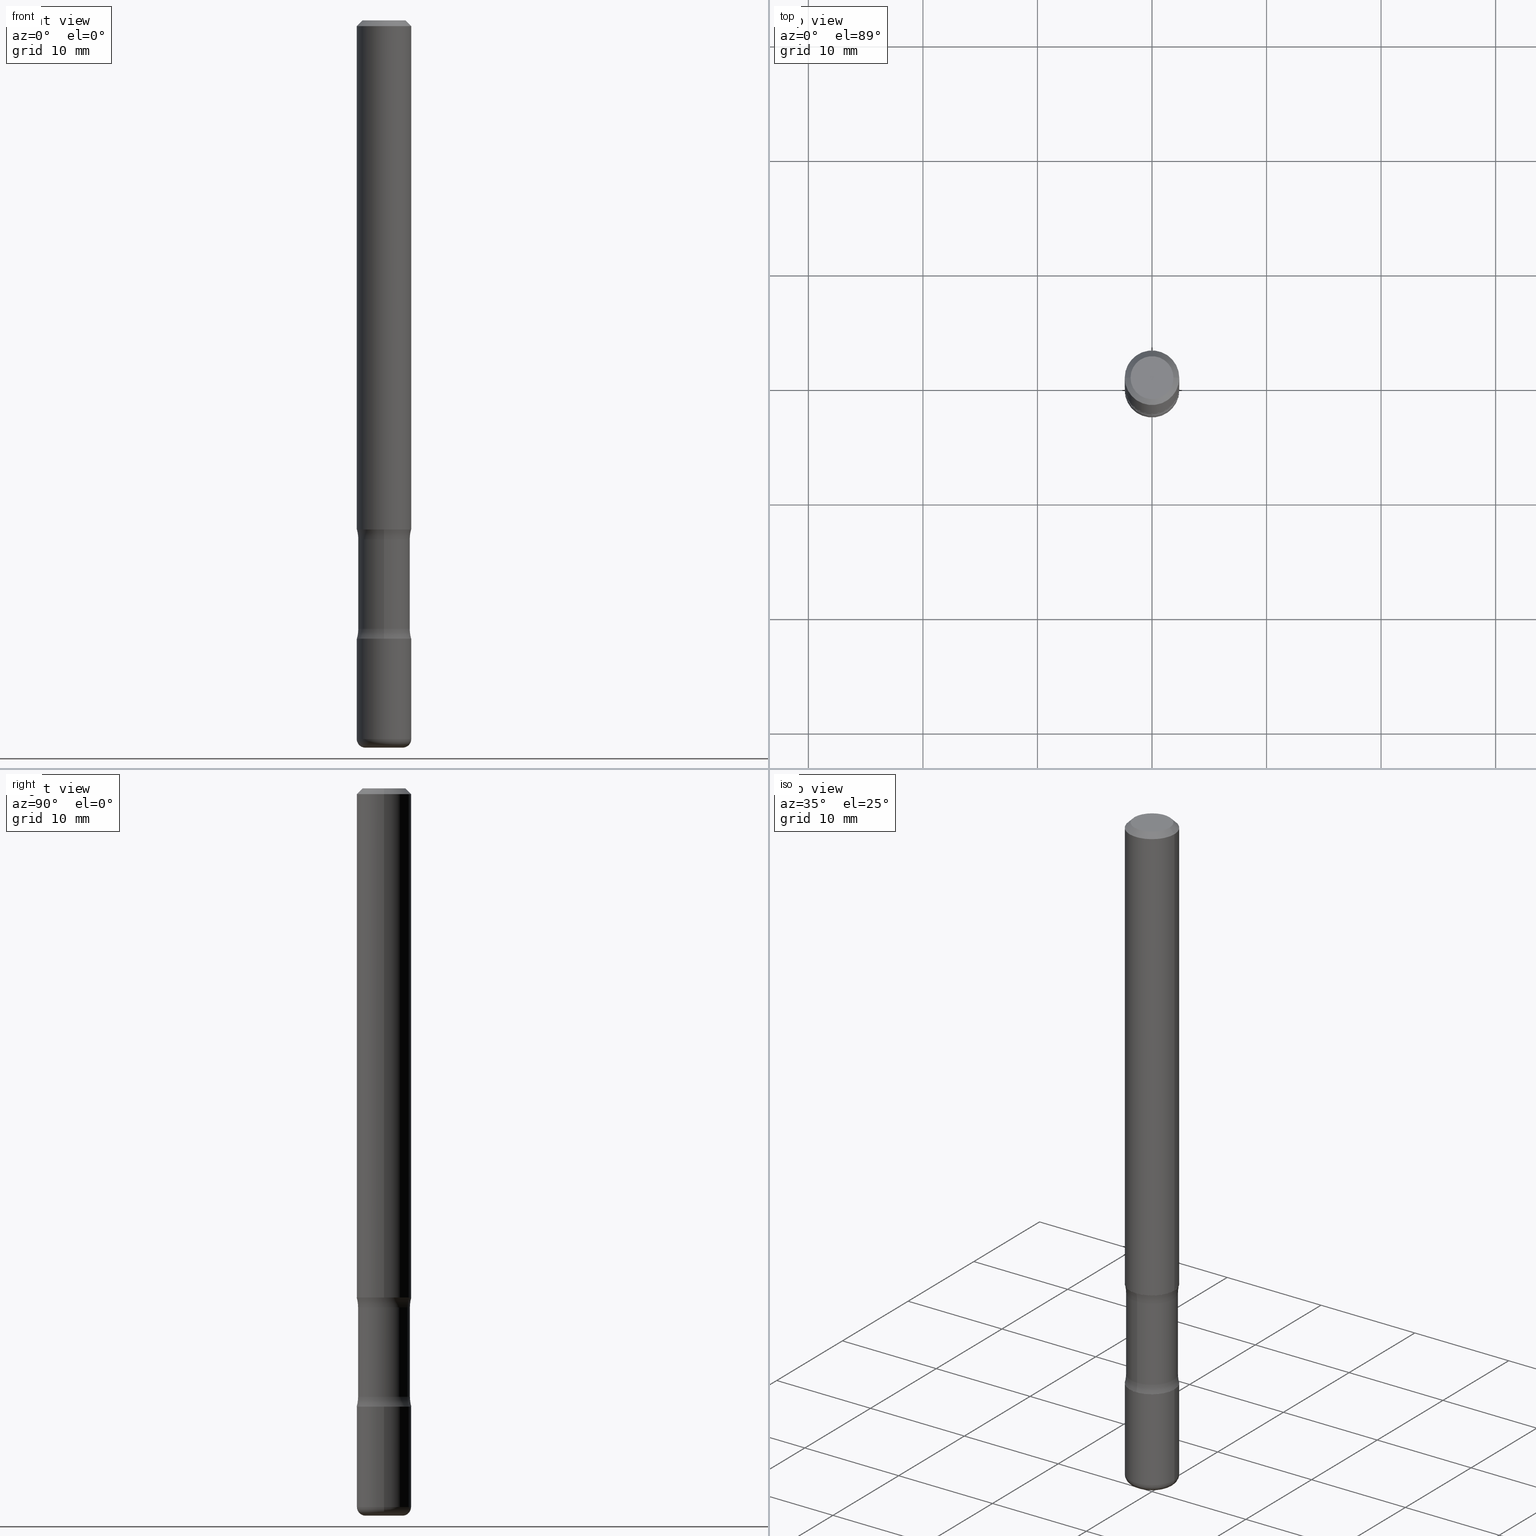
[diagram: canonical four-view strip — front | top / right | iso, engineering-drawing reading convention]
A machine part, canonical four-view strip (front | top / right | iso — engineering-drawing reading convention). The complete STEP part file that produces these views, byte-faithful:
ISO-10303-21;
HEADER;
FILE_DESCRIPTION (( 'STEP AP203' ),
    '1' );
FILE_NAME ('37781.STEP',
    '2024-03-02T00:16:16',
    ( '' ),
    ( '' ),
    'SwSTEP 2.0',
    'SolidWorks 2023',
    '' );
FILE_SCHEMA (( 'CONFIG_CONTROL_DESIGN' ));
ENDSEC;

DATA;
#1 = EDGE_LOOP ( 'NONE', ( #299, #529, #95, #230 ) ) ;
#2 = AXIS2_PLACEMENT_3D ( 'NONE', #373, #100, #353 ) ;
#3 = AXIS2_PLACEMENT_3D ( 'NONE', #190, #428, #503 ) ;
#4 = DIRECTION ( 'NONE',  ( 2.553476385947133355E-29, -3.336808337214295667E-15, -1.000000000000000000 ) ) ;
#5 = FACE_OUTER_BOUND ( 'NONE', #267, .T. ) ;
#6 = ORIENTED_EDGE ( 'NONE', *, *, #74, .F. ) ;
#7 = PERSON_AND_ORGANIZATION_ROLE ( 'creator' ) ;
#8 = ORIENTED_EDGE ( 'NONE', *, *, #205, .F. ) ;
#9 = DIRECTION ( 'NONE',  ( 1.000000000000000000, -6.982962677686268288E-15, 0.000000000000000000 ) ) ;
#10 = APPROVAL ( #269, 'UNSPECIFIED' ) ;
#11 = APPLICATION_PROTOCOL_DEFINITION ( 'international standard', 'config_control_design', 1994, #493 ) ;
#12 = EDGE_LOOP ( 'NONE', ( #543, #16, #545, #512 ) ) ;
#13 = ORIENTED_EDGE ( 'NONE', *, *, #92, .F. ) ;
#14 = DIRECTION ( 'NONE',  ( 1.000000000000000000, -6.860497997771530774E-15, 4.842693077587735886E-29 ) ) ;
#15 = AXIS2_PLACEMENT_3D ( 'NONE', #432, #345, #301 ) ;
#16 = ORIENTED_EDGE ( 'NONE', *, *, #321, .T. ) ;
#17 = LOCAL_TIME ( 19, 16, 16.00000000000000000, #145 ) ;
#18 = DIRECTION ( 'NONE',  ( 1.000000000000000000, -6.982962677686266711E-15, 4.876176775795935793E-29 ) ) ;
#19 = VERTEX_POINT ( 'NONE', #311 ) ;
#20 = CARTESIAN_POINT ( 'NONE',  ( 5.149934974793610063E-16, 0.07374999999999984346, -2.574967487396814399E-16 ) ) ;
#21 = DIRECTION ( 'NONE',  ( 1.000000000000000000, -6.982962677686266711E-15, 4.876176775795935793E-29 ) ) ;
#22 = SECURITY_CLASSIFICATION_LEVEL ( 'unclassified' ) ;
#23 = DIRECTION ( 'NONE',  ( -6.982962677686265922E-15, -1.000000000000000000, 0.000000000000000000 ) ) ;
#24 = CIRCLE ( 'NONE', #263, 0.1250000000000000278 ) ;
#25 = ADVANCED_FACE ( 'NONE', ( #488 ), #408, .T. ) ;
#26 = AXIS2_PLACEMENT_3D ( 'NONE', #143, #457, #138 ) ;
#27 = VERTEX_POINT ( 'NONE', #139 ) ;
#28 = CARTESIAN_POINT ( 'NONE',  ( -0.09375000000000004163, -2.423827170101085722E-15, -1.750000000000000000 ) ) ;
#29 = DIRECTION ( 'NONE',  ( -2.445468806185136597E-29, 3.491481338843145583E-15, 1.000000000000000000 ) ) ;
#30 = DIRECTION ( 'NONE',  ( 6.982962677686265133E-15, 1.000000000000000000, -3.067338098149349877E-15 ) ) ;
#31 = SECURITY_CLASSIFICATION ( '', '', #22 ) ;
#32 = DIRECTION ( 'NONE',  ( -6.982962677686265922E-15, -1.000000000000000000, 3.336808337214295667E-15 ) ) ;
#33 = CARTESIAN_POINT ( 'NONE',  ( 0.09374999999999994449, -9.278611657975658288E-15, -2.470000000000000639 ) ) ;
#34 = EDGE_CURVE ( 'NONE', #146, #196, #236, .T. ) ;
#35 = DIRECTION ( 'NONE',  ( 2.438088387897960049E-29, -3.491481338843145188E-15, -1.000000000000000000 ) ) ;
#36 = CARTESIAN_POINT ( 'NONE',  ( 5.110032292609207884E-29, -7.306245973522905960E-15, -2.091089789977795821 ) ) ;
#37 = ORIENTED_EDGE ( 'NONE', *, *, #308, .T. ) ;
#38 = ADVANCED_FACE ( 'NONE', ( #128 ), #354, .T. ) ;
#39 = APPROVAL_PERSON_ORGANIZATION ( #446, #285, #451 ) ;
#40 = CARTESIAN_POINT ( 'NONE',  ( -6.110131029264649859E-16, -0.08906250000000860700, -2.499999999999999556 ) ) ;
#41 = DIRECTION ( 'NONE',  ( 2.553476385947133355E-29, -3.336808337214295667E-15, -1.000000000000000000 ) ) ;
#42 = CARTESIAN_POINT ( 'NONE',  ( 5.113694852322927974E-29, -7.301000979552905916E-15, -2.091089789977795821 ) ) ;
#43 = TOROIDAL_SURFACE ( 'NONE', #176, 0.06375000000000007050, 0.02999999999999971440 ) ;
#44 = VECTOR ( 'NONE', #559, 39.37007874015748143 ) ;
#45 = DIRECTION ( 'NONE',  ( -2.445468806185136597E-29, 3.491481338843145583E-15, 1.000000000000000000 ) ) ;
#46 = CIRCLE ( 'NONE', #261, 0.07374999999999984346 ) ;
#47 = APPROVAL_ROLE ( '' ) ;
#48 = ORIENTED_EDGE ( 'NONE', *, *, #214, .F. ) ;
#49 = ADVANCED_FACE ( 'NONE', ( #394 ), #251, .F. ) ;
#50 = PERSON_AND_ORGANIZATION ( #173, #389 ) ;
#51 = ORIENTED_EDGE ( 'NONE', *, *, #423, .T. ) ;
#52 = CARTESIAN_POINT ( 'NONE',  ( 0.000000000000000000, 0.000000000000000000, 0.000000000000000000 ) ) ;
#53 = CYLINDRICAL_SURFACE ( 'NONE', #291, 0.09374999999999991673 ) ;
#54 = ORIENTED_EDGE ( 'NONE', *, *, #256, .T. ) ;
#55 = CARTESIAN_POINT ( 'NONE',  ( 0.000000000000000000, 0.000000000000000000, 0.000000000000000000 ) ) ;
#56 = DIRECTION ( 'NONE',  ( 1.000000000000000000, -6.982962677686266711E-15, 4.876176775795935793E-29 ) ) ;
#57 = ADVANCED_BREP_SHAPE_REPRESENTATION ( '37781', ( #153, #535, #341, #549 ), #65 ) ;
#58 = EDGE_LOOP ( 'NONE', ( #13, #107, #111, #365 ) ) ;
#59 = PERSON_AND_ORGANIZATION_ROLE ( 'creator' ) ;
#60 = EDGE_LOOP ( 'NONE', ( #531, #8, #227, #186 ) ) ;
#61 = EDGE_CURVE ( 'NONE', #213, #430, #358, .T. ) ;
#62 = FACE_OUTER_BOUND ( 'NONE', #502, .T. ) ;
#63 = CARTESIAN_POINT ( 'NONE',  ( 6.040307951277289098E-29, -8.623958906942573151E-15, -2.470000000000000639 ) ) ;
#64 = CIRCLE ( 'NONE', #141, 0.1250000000000000278 ) ;
#65 =( GEOMETRIC_REPRESENTATION_CONTEXT ( 3 ) GLOBAL_UNCERTAINTY_ASSIGNED_CONTEXT ( ( #183 ) ) GLOBAL_UNIT_ASSIGNED_CONTEXT ( ( #182, #99, #218 ) ) REPRESENTATION_CONTEXT ( 'NONE', 'WORKASPACE' ) );
#66 = CARTESIAN_POINT ( 'NONE',  ( -0.09375000000000005551, 6.661338147750943187E-16, -4.611501647113976798E-30 ) ) ;
#67 = DIRECTION ( 'NONE',  ( 2.553476385947133355E-29, -3.336808337214295667E-15, -1.000000000000000000 ) ) ;
#68 = ORIENTED_EDGE ( 'NONE', *, *, #336, .F. ) ;
#69 = CARTESIAN_POINT ( 'NONE',  ( 4.890937612370276662E-31, -6.982962677686296539E-17, -0.02000000000000001776 ) ) ;
#70 = CIRCLE ( 'NONE', #88, 0.02999999999999971440 ) ;
#71 = CC_DESIGN_DATE_AND_TIME_ASSIGNMENT ( #224, #232, ( #401 ) ) ;
#72 = DIRECTION ( 'NONE',  ( 1.000000000000000000, -6.982962677686266711E-15, 4.876176775795935793E-29 ) ) ;
#73 = DIRECTION ( 'NONE',  ( 2.445468806185136597E-29, -3.491481338843145583E-15, -1.000000000000000000 ) ) ;
#74 = EDGE_CURVE ( 'NONE', #91, #283, #24, .T. ) ;
#75 = ORIENTED_EDGE ( 'NONE', *, *, #337, .T. ) ;
#76 = PLANE ( 'NONE',  #222 ) ;
#77 = VECTOR ( 'NONE', #383, 39.37007874015748143 ) ;
#78 = AXIS2_PLACEMENT_3D ( 'NONE', #477, #4, #167 ) ;
#79 = DIRECTION ( 'NONE',  ( 2.438088387897960049E-29, -3.491481338843145188E-15, -1.000000000000000000 ) ) ;
#80 = ORIENTED_EDGE ( 'NONE', *, *, #558, .F. ) ;
#81 = CC_DESIGN_PERSON_AND_ORGANIZATION_ASSIGNMENT ( #177, #309, ( #390 ) ) ;
#82 = LINE ( 'NONE', #439, #44 ) ;
#83 = FACE_OUTER_BOUND ( 'NONE', #286, .T. ) ;
#84 = EDGE_LOOP ( 'NONE', ( #528, #539, #51, #233 ) ) ;
#85 = VERTEX_POINT ( 'NONE', #552 ) ;
#86 = CIRCLE ( 'NONE', #304, 0.09375000000000009714 ) ;
#87 = DIRECTION ( 'NONE',  ( 6.860497997771531562E-15, 1.000000000000000000, 0.000000000000000000 ) ) ;
#88 = AXIS2_PLACEMENT_3D ( 'NONE', #279, #367, #313 ) ;
#89 = DATE_AND_TIME ( #275, #455 ) ;
#90 = CARTESIAN_POINT ( 'NONE',  ( -1.468575352647916884E-15, -0.2140625000000072886, -2.091089789977794933 ) ) ;
#91 = VERTEX_POINT ( 'NONE', #157 ) ;
#92 = EDGE_CURVE ( 'NONE', #146, #518, #144, .T. ) ;
#93 = CARTESIAN_POINT ( 'NONE',  ( 6.040307951277289098E-29, -8.623958906942573151E-15, -2.470000000000000639 ) ) ;
#94 = DIRECTION ( 'NONE',  ( 1.000000000000000000, 0.000000000000000000, 0.000000000000000000 ) ) ;
#95 = ORIENTED_EDGE ( 'NONE', *, *, #294, .F. ) ;
#96 = LINE ( 'NONE', #490, #470 ) ;
#97 = CIRCLE ( 'NONE', #501, 0.1250000000000000278 ) ;
#98 = CARTESIAN_POINT ( 'NONE',  ( 0.06375000000000007050, -9.173867217810364919E-15, -2.500000000000000000 ) ) ;
#99 =( NAMED_UNIT ( * ) PLANE_ANGLE_UNIT ( ) SI_UNIT ( $, .RADIAN. ) );
#100 = DIRECTION ( 'NONE',  ( 2.445468806185136597E-29, -3.491481338843145583E-15, -1.000000000000000000 ) ) ;
#101 = CARTESIAN_POINT ( 'NONE',  ( 0.000000000000000000, 0.000000000000000000, 0.000000000000000000 ) ) ;
#102 = ORIENTED_EDGE ( 'NONE', *, *, #148, .T. ) ;
#103 = DIRECTION ( 'NONE',  ( -2.445468806185136597E-29, 3.491481338843145583E-15, 1.000000000000000000 ) ) ;
#104 = AXIS2_PLACEMENT_3D ( 'NONE', #20, #220, #409 ) ;
#105 = AXIS2_PLACEMENT_3D ( 'NONE', #475, #388, #516 ) ;
#106 = LINE ( 'NONE', #287, #77 ) ;
#107 = ORIENTED_EDGE ( 'NONE', *, *, #34, .T. ) ;
#108 = PLANE ( 'NONE',  #130 ) ;
#109 = EDGE_LOOP ( 'NONE', ( #340, #244, #449, #374 ) ) ;
#110 = CARTESIAN_POINT ( 'NONE',  ( -0.09374999999999981959, 5.848231242562233185E-16, -0.02000000000000001776 ) ) ;
#111 = ORIENTED_EDGE ( 'NONE', *, *, #120, .T. ) ;
#112 = CIRCLE ( 'NONE', #443, 0.09375000000000004163 ) ;
#113 = AXIS2_PLACEMENT_3D ( 'NONE', #212, #339, #434 ) ;
#114 = ADVANCED_FACE ( 'NONE', ( #491 ), #43, .T. ) ;
#115 = CARTESIAN_POINT ( 'NONE',  ( 6.219201134814940684E-16, 0.08906249999999125977, -2.500000000000000444 ) ) ;
#116 = EDGE_LOOP ( 'NONE', ( #334, #510 ) ) ;
#117 = DIRECTION ( 'NONE',  ( 7.105427357601001859E-15, 1.000000000000000000, -3.491481338843145583E-15 ) ) ;
#118 = PLANE ( 'NONE',  #105 ) ;
#119 = ORIENTED_EDGE ( 'NONE', *, *, #294, .T. ) ;
#120 = EDGE_CURVE ( 'NONE', #196, #368, #70, .T. ) ;
#121 = DIRECTION ( 'NONE',  ( -1.000000000000000000, 7.105427357600993970E-15, 0.000000000000000000 ) ) ;
#122 = CIRCLE ( 'NONE', #357, 0.06375000000000007050 ) ;
#123 = DIRECTION ( 'NONE',  ( 1.000000000000000000, -6.860497997771530774E-15, 4.842693077587735886E-29 ) ) ;
#124 = CARTESIAN_POINT ( 'NONE',  ( -0.09374999999999994449, -7.957825092167479227E-15, -2.470000000000000639 ) ) ;
#125 =( LENGTH_UNIT ( ) NAMED_UNIT ( * ) SI_UNIT ( $, .METRE. ) );
#126 = ORIENTED_EDGE ( 'NONE', *, *, #61, .T. ) ;
#127 = ORIENTED_EDGE ( 'NONE', *, *, #517, .T. ) ;
#128 = FACE_OUTER_BOUND ( 'NONE', #155, .T. ) ;
#129 = CIRCLE ( 'NONE', #468, 0.09375000000000002776 ) ;
#130 = AXIS2_PLACEMENT_3D ( 'NONE', #193, #427, #32 ) ;
#131 = EDGE_CURVE ( 'NONE', #85, #163, #161, .T. ) ;
#132 = DATE_TIME_ROLE ( 'classification_date' ) ;
#133 = EDGE_LOOP ( 'NONE', ( #171, #404, #174, #393 ) ) ;
#134 = CARTESIAN_POINT ( 'NONE',  ( 6.546527510331302998E-16, 0.09374999999999390765, -1.750000000000000222 ) ) ;
#135 = ORIENTED_EDGE ( 'NONE', *, *, #437, .F. ) ;
#136 = ORIENTED_EDGE ( 'NONE', *, *, #472, .F. ) ;
#137 = ORIENTED_EDGE ( 'NONE', *, *, #317, .F. ) ;
#138 = DIRECTION ( 'NONE',  ( 6.982962677686265133E-15, 1.000000000000000000, -6.134676196298701332E-15 ) ) ;
#139 = CARTESIAN_POINT ( 'NONE',  ( 0.09375000000000002776, -8.074050596074771916E-15, -2.125000000000000000 ) ) ;
#140 = DIRECTION ( 'NONE',  ( -2.445468806185136597E-29, 3.491481338843145583E-15, 1.000000000000000000 ) ) ;
#141 = AXIS2_PLACEMENT_3D ( 'NONE', #366, #234, #23 ) ;
#142 = MECHANICAL_CONTEXT ( 'NONE', #493, 'mechanical' ) ;
#143 = CARTESIAN_POINT ( 'NONE',  ( 6.154174857873591467E-29, -8.670700971497045879E-15, -2.500000000000000000 ) ) ;
#144 = CIRCLE ( 'NONE', #554, 0.02999999999999971440 ) ;
#145 = COORDINATED_UNIVERSAL_TIME_OFFSET ( 5, 0, .BEHIND. ) ;
#146 = VERTEX_POINT ( 'NONE', #147 ) ;
#147 = CARTESIAN_POINT ( 'NONE',  ( -0.06375000000000007050, -8.116778722614140245E-15, -2.500000000000000000 ) ) ;
#148 = EDGE_CURVE ( 'NONE', #518, #368, #303, .T. ) ;
#149 = DIRECTION ( 'NONE',  ( -1.000000000000000000, 6.982962677686267499E-15, 0.000000000000000000 ) ) ;
#150 = ADVANCED_FACE ( 'NONE', ( #536 ), #315, .T. ) ;
#151 = CARTESIAN_POINT ( 'NONE',  ( -6.270923951087521301E-16, -0.08906250000000723310, -2.091089789977795377 ) ) ;
#152 = APPROVAL_PERSON_ORGANIZATION ( #497, #411, #305 ) ;
#153 = MANIFOLD_SOLID_BREP ( 'Body-Move/Copy2[1]', #508 ) ;
#154 = DIRECTION ( 'NONE',  ( 2.553476385947133355E-29, -3.336808337214295667E-15, -1.000000000000000000 ) ) ;
#155 = EDGE_LOOP ( 'NONE', ( #225, #323 ) ) ;
#156 = CARTESIAN_POINT ( 'NONE',  ( 4.890937612370276662E-31, -6.982962677686296539E-17, -0.02000000000000001776 ) ) ;
#157 = CARTESIAN_POINT ( 'NONE',  ( -6.431716872910290192E-16, -0.09375000000000745237, -2.125000000000000000 ) ) ;
#158 = DIRECTION ( 'NONE',  ( 6.982962677686265922E-15, 1.000000000000000000, -2.913971193241879977E-15 ) ) ;
#159 = AXIS2_PLACEMENT_3D ( 'NONE', #215, #519, #9 ) ;
#160 = CIRCLE ( 'NONE', #272, 0.09375000000000002776 ) ;
#161 = CIRCLE ( 'NONE', #335, 0.09375000000000009714 ) ;
#162 = DIRECTION ( 'NONE',  ( 2.553476385947133355E-29, -3.336808337214295667E-15, -1.000000000000000000 ) ) ;
#163 = VERTEX_POINT ( 'NONE', #134 ) ;
#164 = CARTESIAN_POINT ( 'NONE',  ( 4.338651280918389502E-29, -6.262637308385086581E-15, -1.783910210022204401 ) ) ;
#165 = FACE_OUTER_BOUND ( 'NONE', #312, .T. ) ;
#166 = CIRCLE ( 'NONE', #344, 0.08906249999999993339 ) ;
#167 = DIRECTION ( 'NONE',  ( 6.982962677686265922E-15, 1.000000000000000000, -3.336808337214296061E-15 ) ) ;
#168 = FACE_OUTER_BOUND ( 'NONE', #523, .T. ) ;
#169 = EDGE_CURVE ( 'NONE', #440, #430, #96, .T. ) ;
#170 = APPROVAL_STATUS ( 'not_yet_approved' ) ;
#171 = ORIENTED_EDGE ( 'NONE', *, *, #214, .T. ) ;
#172 = DIRECTION ( 'NONE',  ( 6.860497997771531562E-15, 1.000000000000000000, 0.000000000000000000 ) ) ;
#173 = PERSON ( 'UNSPECIFIED', 'UNSPECIFIED', 'UNSPECIFIED', ('UNSPECIFIED'), ('UNSPECIFIED'), ('UNSPECIFIED') ) ;
#174 = ORIENTED_EDGE ( 'NONE', *, *, #517, .F. ) ;
#175 = DIRECTION ( 'NONE',  ( 1.000000000000000000, -6.982962677686266711E-15, 4.876176775795935793E-29 ) ) ;
#176 = AXIS2_PLACEMENT_3D ( 'NONE', #63, #140, #184 ) ;
#177 = PERSON_AND_ORGANIZATION ( #173, #389 ) ;
#178 = ORIENTED_EDGE ( 'NONE', *, *, #169, .F. ) ;
#179 = DIRECTION ( 'NONE',  ( 6.982962677686265133E-15, 1.000000000000000000, -3.067338098149349877E-15 ) ) ;
#180 = APPROVAL_DATE_TIME ( #228, #10 ) ;
#181 = DIRECTION ( 'NONE',  ( -2.445468806185136597E-29, 3.491481338843145583E-15, 1.000000000000000000 ) ) ;
#182 =( CONVERSION_BASED_UNIT ( 'INCH', #360 ) LENGTH_UNIT ( ) NAMED_UNIT ( #217 ) );
#183 = UNCERTAINTY_MEASURE_WITH_UNIT (LENGTH_MEASURE( 1.000000000000000082E-05 ), #182, 'distance_accuracy_value', 'NONE');
#184 = DIRECTION ( 'NONE',  ( 1.000000000000000000, -6.982962677686268288E-15, 4.883557194083112901E-29 ) ) ;
#185 = PERSON_AND_ORGANIZATION ( #173, #389 ) ;
#186 = ORIENTED_EDGE ( 'NONE', *, *, #557, .T. ) ;
#187 = LOCAL_TIME ( 19, 16, 16.00000000000000000, #410 ) ;
#188 = PLANE ( 'NONE',  #104 ) ;
#189 = SHAPE_DEFINITION_REPRESENTATION ( #378, #57 ) ;
#190 = CARTESIAN_POINT ( 'NONE',  ( 6.154174857873591467E-29, -8.670700971497045879E-15, -2.500000000000000000 ) ) ;
#191 = ADVANCED_FACE ( 'NONE', ( #271 ), #53, .T. ) ;
#192 = ORIENTED_EDGE ( 'NONE', *, *, #478, .T. ) ;
#193 = CARTESIAN_POINT ( 'NONE',  ( 8.726388948129611336E-30, -1.361158663068067946E-14, -2.125000000000000000 ) ) ;
#194 = DIRECTION ( 'NONE',  ( -2.445468806185136597E-29, 3.491481338843145583E-15, 1.000000000000000000 ) ) ;
#195 = CC_DESIGN_APPROVAL ( #285, ( #507 ) ) ;
#196 = VERTEX_POINT ( 'NONE', #98 ) ;
#197 = DIRECTION ( 'NONE',  ( -2.445468806185136597E-29, 3.491481338843145583E-15, 1.000000000000000000 ) ) ;
#198 = APPROVAL_DATE_TIME ( #448, #411 ) ;
#199 = CARTESIAN_POINT ( 'NONE',  ( 5.196621213143415268E-29, -7.419397845041685201E-15, -2.125000000000000000 ) ) ;
#200 = DIRECTION ( 'NONE',  ( 6.982962677686265922E-15, 1.000000000000000000, -3.336808337214296061E-15 ) ) ;
#201 = ORIENTED_EDGE ( 'NONE', *, *, #478, .F. ) ;
#202 = CIRCLE ( 'NONE', #524, 0.09374999999999981959 ) ;
#203 = LOCAL_TIME ( 19, 16, 16.00000000000000000, #264 ) ;
#204 = CARTESIAN_POINT ( 'NONE',  ( 0.09375000000000004163, -6.764745094008592175E-15, -1.750000000000000000 ) ) ;
#205 = EDGE_CURVE ( 'NONE', #466, #213, #46, .T. ) ;
#206 = DIRECTION ( 'NONE',  ( 1.000000000000000000, -6.982962677686269866E-15, 0.000000000000000000 ) ) ;
#207 = DIRECTION ( 'NONE',  ( 6.982962677686265133E-15, 1.000000000000000000, -3.067338098149350666E-15 ) ) ;
#208 = ORIENTED_EDGE ( 'NONE', *, *, #429, .F. ) ;
#209 = CC_DESIGN_PERSON_AND_ORGANIZATION_ASSIGNMENT ( #319, #7, ( #401 ) ) ;
#210 = AXIS2_PLACEMENT_3D ( 'NONE', #242, #197, #246 ) ;
#211 = APPROVAL_PERSON_ORGANIZATION ( #273, #10, #47 ) ;
#212 = CARTESIAN_POINT ( 'NONE',  ( 5.196621213143415268E-29, -7.419397845041685201E-15, -2.125000000000000000 ) ) ;
#213 = VERTEX_POINT ( 'NONE', #542 ) ;
#214 = EDGE_CURVE ( 'NONE', #480, #19, #506, .T. ) ;
#215 = CARTESIAN_POINT ( 'NONE',  ( 6.113672015462842613E-29, -8.728703347107864943E-15, -2.500000000000000000 ) ) ;
#216 = CALENDAR_DATE ( 2024, 1, 3 ) ;
#217 = DIMENSIONAL_EXPONENTS ( 1.000000000000000000, 0.000000000000000000, 0.000000000000000000, 0.000000000000000000, 0.000000000000000000, 0.000000000000000000, 0.000000000000000000 ) ;
#218 =( NAMED_UNIT ( * ) SI_UNIT ( $, .STERADIAN. ) SOLID_ANGLE_UNIT ( ) );
#219 = ORIENTED_EDGE ( 'NONE', *, *, #337, .F. ) ;
#220 = DIRECTION ( 'NONE',  ( 2.438088387897960049E-29, -3.491481338843145188E-15, -1.000000000000000000 ) ) ;
#221 = ADVANCED_FACE ( 'NONE', ( #495 ), #238, .T. ) ;
#222 = AXIS2_PLACEMENT_3D ( 'NONE', #298, #79, #258 ) ;
#223 = CIRCLE ( 'NONE', #247, 0.09374999999999981959 ) ;
#224 = DATE_AND_TIME ( #494, #187 ) ;
#225 = ORIENTED_EDGE ( 'NONE', *, *, #419, .F. ) ;
#226 = CARTESIAN_POINT ( 'NONE',  ( 4.239067568413239630E-29, -6.168094718586322946E-15, -1.750000000000000000 ) ) ;
#227 = ORIENTED_EDGE ( 'NONE', *, *, #265, .T. ) ;
#228 = DATE_AND_TIME ( #522, #203 ) ;
#229 = DIRECTION ( 'NONE',  ( 2.553476385947133355E-29, -3.336808337214295667E-15, -1.000000000000000000 ) ) ;
#230 = ORIENTED_EDGE ( 'NONE', *, *, #120, .F. ) ;
#231 = CARTESIAN_POINT ( 'NONE',  ( -0.06375000000000007050, -8.170987912895507894E-15, -2.470000000000000639 ) ) ;
#232 = DATE_TIME_ROLE ( 'creation_date' ) ;
#233 = ORIENTED_EDGE ( 'NONE', *, *, #499, .F. ) ;
#234 = DIRECTION ( 'NONE',  ( -1.000000000000000000, 6.982962677686265922E-15, -4.883557194083112901E-29 ) ) ;
#235 = ORIENTED_EDGE ( 'NONE', *, *, #278, .T. ) ;
#236 = CIRCLE ( 'NONE', #159, 0.06375000000000007050 ) ;
#237 = AXIS2_PLACEMENT_3D ( 'NONE', #343, #123, #87 ) ;
#238 = CYLINDRICAL_SURFACE ( 'NONE', #26, 0.08906249999999993339 ) ;
#239 = ORIENTED_EDGE ( 'NONE', *, *, #321, .F. ) ;
#240 = ADVANCED_FACE ( 'NONE', ( #62 ), #188, .F. ) ;
#241 = DIRECTION ( 'NONE',  ( -2.445468806185136597E-29, 3.491481338843145583E-15, 1.000000000000000000 ) ) ;
#242 = CARTESIAN_POINT ( 'NONE',  ( 6.040307951277289098E-29, -8.623958906942573151E-15, -2.470000000000000639 ) ) ;
#243 = ADVANCED_FACE ( 'NONE', ( #486 ), #418, .T. ) ;
#244 = ORIENTED_EDGE ( 'NONE', *, *, #74, .T. ) ;
#245 = CONICAL_SURFACE ( 'NONE', #2, 0.09374999999999981959, 0.7853981633974472798 ) ;
#246 = DIRECTION ( 'NONE',  ( 1.000000000000000000, -6.982962677686265922E-15, 0.000000000000000000 ) ) ;
#247 = AXIS2_PLACEMENT_3D ( 'NONE', #302, #474, #348 ) ;
#248 = DIRECTION ( 'NONE',  ( 1.000000000000000000, -6.982962677686268288E-15, 0.000000000000000000 ) ) ;
#249 = ADVANCED_FACE ( 'NONE', ( #405 ), #245, .T. ) ;
#250 = FACE_OUTER_BOUND ( 'NONE', #392, .T. ) ;
#251 = PLANE ( 'NONE',  #15 ) ;
#252 = CARTESIAN_POINT ( 'NONE',  ( 6.219201134814759246E-16, 0.08906249999999366063, -1.783910210022204845 ) ) ;
#253 = ADVANCED_FACE ( 'NONE', ( #526 ), #316, .T. ) ;
#254 = VECTOR ( 'NONE', #403, 39.37007874015748143 ) ;
#255 = AXIS2_PLACEMENT_3D ( 'NONE', #42, #560, #293 ) ;
#256 = EDGE_CURVE ( 'NONE', #406, #400, #64, .T. ) ;
#257 = CARTESIAN_POINT ( 'NONE',  ( 0.09374999999999981959, -7.130013140679428044E-16, -0.02000000000000001776 ) ) ;
#258 = DIRECTION ( 'NONE',  ( -1.000000000000000000, 6.982962677686265922E-15, -4.876176775795935793E-29 ) ) ;
#259 = DIRECTION ( 'NONE',  ( 6.982962677686265922E-15, 1.000000000000000000, -2.913971193241877611E-15 ) ) ;
#260 = VERTEX_POINT ( 'NONE', #28 ) ;
#261 = AXIS2_PLACEMENT_3D ( 'NONE', #52, #274, #56 ) ;
#262 = CONICAL_SURFACE ( 'NONE', #290, 0.09374999999999981959, 0.7853981633974472798 ) ;
#263 = AXIS2_PLACEMENT_3D ( 'NONE', #90, #14, #172 ) ;
#264 = COORDINATED_UNIVERSAL_TIME_OFFSET ( 5, 0, .BEHIND. ) ;
#265 = EDGE_CURVE ( 'NONE', #466, #352, #106, .T. ) ;
#266 = CALENDAR_DATE ( 2024, 1, 3 ) ;
#267 = EDGE_LOOP ( 'NONE', ( #525, #239 ) ) ;
#268 = DIRECTION ( 'NONE',  ( -2.445468806185136597E-29, 3.491481338843145583E-15, 1.000000000000000000 ) ) ;
#269 = APPROVAL_STATUS ( 'not_yet_approved' ) ;
#270 = VERTEX_POINT ( 'NONE', #282 ) ;
#271 = FACE_OUTER_BOUND ( 'NONE', #12, .T. ) ;
#272 = AXIS2_PLACEMENT_3D ( 'NONE', #199, #67, #158 ) ;
#273 = PERSON_AND_ORGANIZATION ( #173, #389 ) ;
#274 = DIRECTION ( 'NONE',  ( -2.445468806185136597E-29, 3.491481338843145583E-15, 1.000000000000000000 ) ) ;
#275 = CALENDAR_DATE ( 2024, 1, 3 ) ;
#276 = ORIENTED_EDGE ( 'NONE', *, *, #437, .T. ) ;
#277 = APPLICATION_CONTEXT ( 'configuration controlled 3d designs of mechanical parts and assemblies' ) ;
#278 = EDGE_CURVE ( 'NONE', #270, #27, #129, .T. ) ;
#279 = CARTESIAN_POINT ( 'NONE',  ( 0.06375000000000007050, -9.069122777645073127E-15, -2.470000000000000639 ) ) ;
#280 = ORIENTED_EDGE ( 'NONE', *, *, #336, .T. ) ;
#281 = CIRCLE ( 'NONE', #327, 0.09375000000000002776 ) ;
#282 = CARTESIAN_POINT ( 'NONE',  ( -0.09375000000000002776, -7.355544561217034463E-15, -2.125000000000000000 ) ) ;
#283 = VERTEX_POINT ( 'NONE', #151 ) ;
#284 = DIRECTION ( 'NONE',  ( -2.445468806185136877E-29, 3.491481338843145188E-15, 1.000000000000000000 ) ) ;
#285 = APPROVAL ( #314, 'UNSPECIFIED' ) ;
#286 = EDGE_LOOP ( 'NONE', ( #80, #48, #75, #276 ) ) ;
#287 = CARTESIAN_POINT ( 'NONE',  ( -0.09374999999999981959, 5.848231242562233185E-16, -0.02000000000000001776 ) ) ;
#288 = CIRCLE ( 'NONE', #369, 0.08906249999999994726 ) ;
#289 = CARTESIAN_POINT ( 'NONE',  ( 5.113694852322927974E-29, -7.301000979552905916E-15, -2.091089789977795821 ) ) ;
#290 = AXIS2_PLACEMENT_3D ( 'NONE', #69, #73, #149 ) ;
#291 = AXIS2_PLACEMENT_3D ( 'NONE', #101, #460, #18 ) ;
#292 = DIRECTION ( 'NONE',  ( 2.553476385947133355E-29, -3.336808337214295667E-15, -1.000000000000000000 ) ) ;
#293 = DIRECTION ( 'NONE',  ( 6.982962677686265922E-15, 1.000000000000000000, -3.336808337214296061E-15 ) ) ;
#294 = EDGE_CURVE ( 'NONE', #368, #518, #461, .T. ) ;
#295 = DIRECTION ( 'NONE',  ( 2.553476385947133355E-29, -3.336808337214295667E-15, -1.000000000000000000 ) ) ;
#296 = AXIS2_PLACEMENT_3D ( 'NONE', #164, #295, #200 ) ;
#297 = CC_DESIGN_SECURITY_CLASSIFICATION ( #31, ( #507 ) ) ;
#298 = CARTESIAN_POINT ( 'NONE',  ( 8.726388948129611336E-30, -1.361158663068067946E-14, -2.125000000000000000 ) ) ;
#299 = ORIENTED_EDGE ( 'NONE', *, *, #419, .T. ) ;
#300 = DIRECTION ( 'NONE',  ( -2.445468806185136597E-29, 3.491481338843145583E-15, 1.000000000000000000 ) ) ;
#301 = DIRECTION ( 'NONE',  ( 6.982962677686265922E-15, 1.000000000000000000, -3.336808337214295667E-15 ) ) ;
#302 = CARTESIAN_POINT ( 'NONE',  ( 4.890937612370276662E-31, -6.982962677686296539E-17, -0.02000000000000001776 ) ) ;
#303 = CIRCLE ( 'NONE', #355, 0.09375000000000009714 ) ;
#304 = AXIS2_PLACEMENT_3D ( 'NONE', #338, #431, #259 ) ;
#305 = APPROVAL_ROLE ( '' ) ;
#306 = ORIENTED_EDGE ( 'NONE', *, *, #131, .F. ) ;
#307 = EDGE_LOOP ( 'NONE', ( #119, #396, #201, #136 ) ) ;
#308 = EDGE_CURVE ( 'NONE', #260, #352, #422, .T. ) ;
#309 = PERSON_AND_ORGANIZATION_ROLE ( 'design_owner' ) ;
#310 = ORIENTED_EDGE ( 'NONE', *, *, #205, .T. ) ;
#311 = CARTESIAN_POINT ( 'NONE',  ( -6.270923951087611034E-16, -0.08906250000000623390, -1.783910210022204401 ) ) ;
#312 = EDGE_LOOP ( 'NONE', ( #137, #485, #351, #219 ) ) ;
#313 = DIRECTION ( 'NONE',  ( 1.000000000000000000, -6.982962677686269866E-15, 0.000000000000000000 ) ) ;
#314 = APPROVAL_STATUS ( 'not_yet_approved' ) ;
#315 = CYLINDRICAL_SURFACE ( 'NONE', #433, 0.09375000000000005551 ) ;
#316 = TOROIDAL_SURFACE ( 'NONE', #397, 0.06375000000000007050, 0.02999999999999971440 ) ;
#317 = EDGE_CURVE ( 'NONE', #19, #480, #288, .T. ) ;
#318 = AXIS2_PLACEMENT_3D ( 'NONE', #471, #29, #72 ) ;
#319 = PERSON_AND_ORGANIZATION ( #173, #389 ) ;
#320 = DIRECTION ( 'NONE',  ( 6.982962677686265922E-15, 1.000000000000000000, -2.913971193241877611E-15 ) ) ;
#321 = EDGE_CURVE ( 'NONE', #260, #440, #112, .T. ) ;
#322 = DATE_AND_TIME ( #216, #17 ) ;
#323 = ORIENTED_EDGE ( 'NONE', *, *, #34, .F. ) ;
#324 = DIRECTION ( 'NONE',  ( -2.445468806185136597E-29, 3.491481338843145583E-15, 1.000000000000000000 ) ) ;
#325 = ORIENTED_EDGE ( 'NONE', *, *, #472, .T. ) ;
#326 = CARTESIAN_POINT ( 'NONE',  ( 6.219201134814836160E-16, 0.08906249999999261979, -2.091089789977795821 ) ) ;
#327 = AXIS2_PLACEMENT_3D ( 'NONE', #442, #45, #346 ) ;
#328 = FACE_OUTER_BOUND ( 'NONE', #84, .T. ) ;
#329 = DIRECTION ( 'NONE',  ( 6.982962677686265922E-15, 1.000000000000000000, -3.336808337214296061E-15 ) ) ;
#330 = ORIENTED_EDGE ( 'NONE', *, *, #278, .F. ) ;
#331 = CARTESIAN_POINT ( 'NONE',  ( 4.279570410823988484E-29, -6.110092342975504671E-15, -1.750000000000000000 ) ) ;
#332 = DIRECTION ( 'NONE',  ( 1.000000000000000000, -6.982962677686270655E-15, 0.000000000000000000 ) ) ;
#333 = TOROIDAL_SURFACE ( 'NONE', #514, 0.2140624999999999889, 0.1250000000000000278 ) ;
#334 = ORIENTED_EDGE ( 'NONE', *, *, #420, .T. ) ;
#335 = AXIS2_PLACEMENT_3D ( 'NONE', #226, #229, #320 ) ;
#336 = EDGE_CURVE ( 'NONE', #430, #352, #202, .T. ) ;
#337 = EDGE_CURVE ( 'NONE', #480, #163, #97, .T. ) ;
#338 = CARTESIAN_POINT ( 'NONE',  ( 4.239067568413239630E-29, -6.168094718586322946E-15, -1.750000000000000000 ) ) ;
#339 = DIRECTION ( 'NONE',  ( 2.553476385947133355E-29, -3.336808337214295667E-15, -1.000000000000000000 ) ) ;
#340 = ORIENTED_EDGE ( 'NONE', *, *, #496, .F. ) ;
#341 = MANIFOLD_SOLID_BREP ( 'Body-Move/Copy2[4]', #387 ) ;
#342 = CARTESIAN_POINT ( 'NONE',  ( 6.113672015462842613E-29, -8.728703347107864943E-15, -2.500000000000000000 ) ) ;
#343 = CARTESIAN_POINT ( 'NONE',  ( -1.468575352647924772E-15, -0.2140625000000062339, -1.783910210022203513 ) ) ;
#344 = AXIS2_PLACEMENT_3D ( 'NONE', #511, #41, #513 ) ;
#345 = DIRECTION ( 'NONE',  ( 2.553476385947132794E-29, -3.336808337214295667E-15, -1.000000000000000000 ) ) ;
#346 = DIRECTION ( 'NONE',  ( 1.000000000000000000, -6.982962677686270655E-15, 0.000000000000000000 ) ) ;
#347 = CARTESIAN_POINT ( 'NONE',  ( 0.000000000000000000, 0.000000000000000000, 0.000000000000000000 ) ) ;
#348 = DIRECTION ( 'NONE',  ( 1.000000000000000000, -6.982962677686267499E-15, 0.000000000000000000 ) ) ;
#349 = EDGE_LOOP ( 'NONE', ( #362, #37, #68, #178 ) ) ;
#350 = ORIENTED_EDGE ( 'NONE', *, *, #375, .F. ) ;
#351 = ORIENTED_EDGE ( 'NONE', *, *, #131, .T. ) ;
#352 = VERTEX_POINT ( 'NONE', #110 ) ;
#353 = DIRECTION ( 'NONE',  ( -1.000000000000000000, 6.982962677686267499E-15, 0.000000000000000000 ) ) ;
#354 = PLANE ( 'NONE',  #417 ) ;
#355 = AXIS2_PLACEMENT_3D ( 'NONE', #414, #324, #450 ) ;
#356 = ADVANCED_FACE ( 'NONE', ( #550 ), #333, .F. ) ;
#357 = AXIS2_PLACEMENT_3D ( 'NONE', #547, #103, #248 ) ;
#358 = LINE ( 'NONE', #363, #254 ) ;
#359 = ADVANCED_FACE ( 'NONE', ( #328 ), #500, .T. ) ;
#360 = LENGTH_MEASURE_WITH_UNIT ( LENGTH_MEASURE( 0.02539999999999999897 ), #125 );
#361 = DIRECTION ( 'NONE',  ( -2.445468806185136877E-29, 3.491481338843145188E-15, 1.000000000000000000 ) ) ;
#362 = ORIENTED_EDGE ( 'NONE', *, *, #527, .T. ) ;
#363 = CARTESIAN_POINT ( 'NONE',  ( 0.09374999999999981959, -7.130013140679428044E-16, -0.02000000000000001776 ) ) ;
#364 = APPROVAL_DATE_TIME ( #89, #285 ) ;
#365 = ORIENTED_EDGE ( 'NONE', *, *, #148, .F. ) ;
#366 = CARTESIAN_POINT ( 'NONE',  ( 1.494790448192267349E-15, 0.2140624999999926614, -2.091089789977796265 ) ) ;
#367 = DIRECTION ( 'NONE',  ( -6.982962677686266711E-15, -1.000000000000000000, 3.491481338843145583E-15 ) ) ;
#368 = VERTEX_POINT ( 'NONE', #33 ) ;
#369 = AXIS2_PLACEMENT_3D ( 'NONE', #551, #425, #30 ) ;
#370 = CC_DESIGN_APPROVAL ( #10, ( #401 ) ) ;
#371 = PERSON_AND_ORGANIZATION_ROLE ( 'classification_officer' ) ;
#372 = AXIS2_PLACEMENT_3D ( 'NONE', #532, #498, #179 ) ;
#373 = CARTESIAN_POINT ( 'NONE',  ( 4.890937612370276662E-31, -6.982962677686296539E-17, -0.02000000000000001776 ) ) ;
#374 = ORIENTED_EDGE ( 'NONE', *, *, #256, .F. ) ;
#375 = EDGE_CURVE ( 'NONE', #213, #466, #415, .T. ) ;
#376 = CARTESIAN_POINT ( 'NONE',  ( 1.494790448192259658E-15, 0.2140624999999937161, -1.783910210022205289 ) ) ;
#377 = PRODUCT_RELATED_PRODUCT_CATEGORY ( 'detail', '', ( #390 ) ) ;
#378 = PRODUCT_DEFINITION_SHAPE ( 'NONE', 'NONE',  #401 ) ;
#379 = ORIENTED_EDGE ( 'NONE', *, *, #265, .F. ) ;
#380 = CARTESIAN_POINT ( 'NONE',  ( 6.546527510331397661E-16, 0.09374999999999261702, -2.125000000000000444 ) ) ;
#381 = AXIS2_PLACEMENT_3D ( 'NONE', #36, #162, #207 ) ;
#382 = DIRECTION ( 'NONE',  ( -6.982962677686265922E-15, -1.000000000000000000, 0.000000000000000000 ) ) ;
#383 = DIRECTION ( 'NONE',  ( -0.7071067811865467956, 2.468850131082249172E-15, -0.7071067811865482389 ) ) ;
#384 = CC_DESIGN_PERSON_AND_ORGANIZATION_ASSIGNMENT ( #185, #371, ( #31 ) ) ;
#385 = CARTESIAN_POINT ( 'NONE',  ( -0.09374999999999991673, 6.661338147750933326E-16, -4.611501647113969791E-30 ) ) ;
#386 = ADVANCED_FACE ( 'NONE', ( #250 ), #262, .T. ) ;
#387 = CLOSED_SHELL ( 'NONE', ( #221, #544, #546, #464, #49, #402, #356, #359 ) ) ;
#388 = DIRECTION ( 'NONE',  ( -2.438088387897960049E-29, 3.491481338843145188E-15, 1.000000000000000000 ) ) ;
#389 = ORGANIZATION ( 'UNSPECIFIED', 'UNSPECIFIED', '' ) ;
#390 = PRODUCT ( '37781', '37781', '', ( #142 ) ) ;
#391 = DIRECTION ( 'NONE',  ( -2.445468806185136877E-29, 3.491481338843145188E-15, 1.000000000000000000 ) ) ;
#392 = EDGE_LOOP ( 'NONE', ( #350, #126, #280, #379 ) ) ;
#393 = ORIENTED_EDGE ( 'NONE', *, *, #423, .F. ) ;
#394 = FACE_OUTER_BOUND ( 'NONE', #436, .T. ) ;
#395 = FACE_OUTER_BOUND ( 'NONE', #109, .T. ) ;
#396 = ORIENTED_EDGE ( 'NONE', *, *, #429, .T. ) ;
#397 = AXIS2_PLACEMENT_3D ( 'NONE', #93, #268, #459 ) ;
#398 = VECTOR ( 'NONE', #292, 39.37007874015748143 ) ;
#399 = CARTESIAN_POINT ( 'NONE',  ( -0.07374999999999984346, 5.499083108677921624E-16, -3.723527850031186263E-30 ) ) ;
#400 = VERTEX_POINT ( 'NONE', #326 ) ;
#401 = PRODUCT_DEFINITION ( 'UNKNOWN', '', #507, #452 ) ;
#402 = ADVANCED_FACE ( 'NONE', ( #504 ), #108, .F. ) ;
#403 = DIRECTION ( 'NONE',  ( 0.7071067811865467956, -7.319954787623254468E-15, -0.7071067811865482389 ) ) ;
#404 = ORIENTED_EDGE ( 'NONE', *, *, #447, .T. ) ;
#405 = FACE_OUTER_BOUND ( 'NONE', #60, .T. ) ;
#406 = VERTEX_POINT ( 'NONE', #380 ) ;
#407 = CIRCLE ( 'NONE', #381, 0.08906249999999993339 ) ;
#408 = CYLINDRICAL_SURFACE ( 'NONE', #481, 0.09375000000000005551 ) ;
#409 = DIRECTION ( 'NONE',  ( -1.000000000000000000, 6.982962677686265922E-15, -4.876176775795935793E-29 ) ) ;
#410 = COORDINATED_UNIVERSAL_TIME_OFFSET ( 5, 0, .BEHIND. ) ;
#411 = APPROVAL ( #170, 'UNSPECIFIED' ) ;
#412 = CARTESIAN_POINT ( 'NONE',  ( 0.000000000000000000, 0.000000000000000000, 0.000000000000000000 ) ) ;
#413 = PERSON_AND_ORGANIZATION_ROLE ( 'design_supplier' ) ;
#414 = CARTESIAN_POINT ( 'NONE',  ( 6.040307951277289098E-29, -8.623958906942573151E-15, -2.470000000000000639 ) ) ;
#415 = CIRCLE ( 'NONE', #318, 0.07374999999999984346 ) ;
#416 = CC_DESIGN_APPROVAL ( #411, ( #31 ) ) ;
#417 = AXIS2_PLACEMENT_3D ( 'NONE', #342, #35, #555 ) ;
#418 = CYLINDRICAL_SURFACE ( 'NONE', #483, 0.09374999999999991673 ) ;
#419 = EDGE_CURVE ( 'NONE', #196, #146, #122, .T. ) ;
#420 = EDGE_CURVE ( 'NONE', #406, #91, #160, .T. ) ;
#421 = CC_DESIGN_PERSON_AND_ORGANIZATION_ASSIGNMENT ( #50, #413, ( #507 ) ) ;
#422 = LINE ( 'NONE', #385, #538 ) ;
#423 = EDGE_CURVE ( 'NONE', #480, #400, #509, .T. ) ;
#424 = EDGE_LOOP ( 'NONE', ( #6, #453, #54, #127 ) ) ;
#425 = DIRECTION ( 'NONE',  ( 2.553476385947133355E-29, -3.336808337214295667E-15, -1.000000000000000000 ) ) ;
#426 = VECTOR ( 'NONE', #479, 39.37007874015748143 ) ;
#427 = DIRECTION ( 'NONE',  ( -2.553476385947132794E-29, 3.336808337214295667E-15, 1.000000000000000000 ) ) ;
#428 = DIRECTION ( 'NONE',  ( 2.553476385947133355E-29, -3.336808337214295667E-15, -1.000000000000000000 ) ) ;
#429 = EDGE_CURVE ( 'NONE', #518, #270, #463, .T. ) ;
#430 = VERTEX_POINT ( 'NONE', #257 ) ;
#431 = DIRECTION ( 'NONE',  ( 2.553476385947133355E-29, -3.336808337214295667E-15, -1.000000000000000000 ) ) ;
#432 = CARTESIAN_POINT ( 'NONE',  ( 4.279570410823988484E-29, -6.110092342975504671E-15, -1.750000000000000000 ) ) ;
#433 = AXIS2_PLACEMENT_3D ( 'NONE', #537, #454, #175 ) ;
#434 = DIRECTION ( 'NONE',  ( 6.982962677686265922E-15, 1.000000000000000000, -2.913971193241879977E-15 ) ) ;
#435 = AXIS2_PLACEMENT_3D ( 'NONE', #438, #515, #206 ) ;
#436 = EDGE_LOOP ( 'NONE', ( #135, #306 ) ) ;
#437 = EDGE_CURVE ( 'NONE', #163, #85, #86, .T. ) ;
#438 = CARTESIAN_POINT ( 'NONE',  ( 4.279570410823988484E-29, -6.110092342975504671E-15, -1.750000000000000000 ) ) ;
#439 = CARTESIAN_POINT ( 'NONE',  ( 0.09375000000000005551, -6.546527510330878985E-16, 4.571415727308692608E-30 ) ) ;
#440 = VERTEX_POINT ( 'NONE', #204 ) ;
#441 = DIRECTION ( 'NONE',  ( 1.000000000000000000, -6.982962677686266711E-15, 4.876176775795935793E-29 ) ) ;
#442 = CARTESIAN_POINT ( 'NONE',  ( 5.196621213143415268E-29, -7.419397845041685201E-15, -2.125000000000000000 ) ) ;
#443 = AXIS2_PLACEMENT_3D ( 'NONE', #331, #241, #467 ) ;
#444 = CC_DESIGN_DATE_AND_TIME_ASSIGNMENT ( #322, #132, ( #31 ) ) ;
#445 = CIRCLE ( 'NONE', #435, 0.09375000000000004163 ) ;
#446 = PERSON_AND_ORGANIZATION ( #173, #389 ) ;
#447 = EDGE_CURVE ( 'NONE', #19, #283, #556, .T. ) ;
#448 = DATE_AND_TIME ( #266, #476 ) ;
#449 = ORIENTED_EDGE ( 'NONE', *, *, #499, .T. ) ;
#450 = DIRECTION ( 'NONE',  ( 1.000000000000000000, -6.982962677686265922E-15, 0.000000000000000000 ) ) ;
#451 = APPROVAL_ROLE ( '' ) ;
#452 = DESIGN_CONTEXT ( 'detailed design', #277, 'design' ) ;
#453 = ORIENTED_EDGE ( 'NONE', *, *, #420, .F. ) ;
#454 = DIRECTION ( 'NONE',  ( -2.445468806185136597E-29, 3.491481338843145583E-15, 1.000000000000000000 ) ) ;
#455 = LOCAL_TIME ( 19, 16, 16.00000000000000000, #456 ) ;
#456 = COORDINATED_UNIVERSAL_TIME_OFFSET ( 5, 0, .BEHIND. ) ;
#457 = DIRECTION ( 'NONE',  ( 2.553476385947133355E-29, -3.336808337214295667E-15, -1.000000000000000000 ) ) ;
#458 = PERSON_AND_ORGANIZATION ( #173, #389 ) ;
#459 = DIRECTION ( 'NONE',  ( 1.000000000000000000, -6.982962677686268288E-15, 4.883557194083112901E-29 ) ) ;
#460 = DIRECTION ( 'NONE',  ( -2.445468806185136597E-29, 3.491481338843145583E-15, 1.000000000000000000 ) ) ;
#461 = CIRCLE ( 'NONE', #210, 0.09375000000000009714 ) ;
#462 = CIRCLE ( 'NONE', #237, 0.1250000000000000278 ) ;
#463 = LINE ( 'NONE', #66, #469 ) ;
#464 = ADVANCED_FACE ( 'NONE', ( #83 ), #482, .F. ) ;
#465 = DIRECTION ( 'NONE',  ( -1.000000000000000000, 6.982962677686265922E-15, -4.883557194083112901E-29 ) ) ;
#466 = VERTEX_POINT ( 'NONE', #399 ) ;
#467 = DIRECTION ( 'NONE',  ( 1.000000000000000000, -6.982962677686269866E-15, 0.000000000000000000 ) ) ;
#468 = AXIS2_PLACEMENT_3D ( 'NONE', #553, #473, #332 ) ;
#469 = VECTOR ( 'NONE', #391, 39.37007874015748143 ) ;
#470 = VECTOR ( 'NONE', #361, 39.37007874015748143 ) ;
#471 = CARTESIAN_POINT ( 'NONE',  ( 0.000000000000000000, 0.000000000000000000, 0.000000000000000000 ) ) ;
#472 = EDGE_CURVE ( 'NONE', #368, #27, #82, .T. ) ;
#473 = DIRECTION ( 'NONE',  ( -2.445468806185136597E-29, 3.491481338843145583E-15, 1.000000000000000000 ) ) ;
#474 = DIRECTION ( 'NONE',  ( -2.445468806185136597E-29, 3.491481338843145583E-15, 1.000000000000000000 ) ) ;
#475 = CARTESIAN_POINT ( 'NONE',  ( 4.279570410823988484E-29, -6.110092342975504671E-15, -1.750000000000000000 ) ) ;
#476 = LOCAL_TIME ( 19, 16, 16.00000000000000000, #484 ) ;
#477 = CARTESIAN_POINT ( 'NONE',  ( 4.338651280918389502E-29, -6.262637308385086581E-15, -1.783910210022204401 ) ) ;
#478 = EDGE_CURVE ( 'NONE', #27, #270, #281, .T. ) ;
#479 = DIRECTION ( 'NONE',  ( 2.553476385947133355E-29, -3.336808337214295667E-15, -1.000000000000000000 ) ) ;
#480 = VERTEX_POINT ( 'NONE', #252 ) ;
#481 = AXIS2_PLACEMENT_3D ( 'NONE', #347, #300, #441 ) ;
#482 = TOROIDAL_SURFACE ( 'NONE', #296, 0.2140624999999999889, 0.1250000000000000278 ) ;
#483 = AXIS2_PLACEMENT_3D ( 'NONE', #412, #181, #21 ) ;
#484 = COORDINATED_UNIVERSAL_TIME_OFFSET ( 5, 0, .BEHIND. ) ;
#485 = ORIENTED_EDGE ( 'NONE', *, *, #558, .T. ) ;
#486 = FACE_OUTER_BOUND ( 'NONE', #349, .T. ) ;
#487 = DIRECTION ( 'NONE',  ( 0.000000000000000000, 0.000000000000000000, 1.000000000000000000 ) ) ;
#488 = FACE_OUTER_BOUND ( 'NONE', #489, .T. ) ;
#489 = EDGE_LOOP ( 'NONE', ( #208, #102, #325, #330 ) ) ;
#490 = CARTESIAN_POINT ( 'NONE',  ( 0.09374999999999991673, -6.546527510330869125E-16, 4.571415727308685602E-30 ) ) ;
#491 = FACE_OUTER_BOUND ( 'NONE', #58, .T. ) ;
#492 = TOROIDAL_SURFACE ( 'NONE', #255, 0.2140624999999999889, 0.1250000000000000278 ) ;
#493 = APPLICATION_CONTEXT ( 'configuration controlled 3d designs of mechanical parts and assemblies' ) ;
#494 = CALENDAR_DATE ( 2024, 1, 3 ) ;
#495 = FACE_OUTER_BOUND ( 'NONE', #133, .T. ) ;
#496 = EDGE_CURVE ( 'NONE', #91, #406, #540, .T. ) ;
#497 = PERSON_AND_ORGANIZATION ( #173, #389 ) ;
#498 = DIRECTION ( 'NONE',  ( 2.553476385947133355E-29, -3.336808337214295667E-15, -1.000000000000000000 ) ) ;
#499 = EDGE_CURVE ( 'NONE', #283, #400, #166, .T. ) ;
#500 = CYLINDRICAL_SURFACE ( 'NONE', #3, 0.08906249999999993339 ) ;
#501 = AXIS2_PLACEMENT_3D ( 'NONE', #376, #465, #382 ) ;
#502 = EDGE_LOOP ( 'NONE', ( #310, #534 ) ) ;
#503 = DIRECTION ( 'NONE',  ( 6.982962677686265133E-15, 1.000000000000000000, -6.134676196298701332E-15 ) ) ;
#504 = FACE_OUTER_BOUND ( 'NONE', #116, .T. ) ;
#505 = DIRECTION ( 'NONE',  ( 1.000000000000000000, -6.982962677686267499E-15, 0.000000000000000000 ) ) ;
#506 = CIRCLE ( 'NONE', #372, 0.08906249999999994726 ) ;
#507 = PRODUCT_DEFINITION_FORMATION_WITH_SPECIFIED_SOURCE ( 'ANY', '', #390, .NOT_KNOWN. ) ;
#508 = CLOSED_SHELL ( 'NONE', ( #150, #253, #38, #114, #25, #521 ) ) ;
#509 = LINE ( 'NONE', #115, #398 ) ;
#510 = ORIENTED_EDGE ( 'NONE', *, *, #496, .T. ) ;
#511 = CARTESIAN_POINT ( 'NONE',  ( 5.110032292609207884E-29, -7.306245973522905960E-15, -2.091089789977795821 ) ) ;
#512 = ORIENTED_EDGE ( 'NONE', *, *, #557, .F. ) ;
#513 = DIRECTION ( 'NONE',  ( 6.982962677686265133E-15, 1.000000000000000000, -3.067338098149350666E-15 ) ) ;
#514 = AXIS2_PLACEMENT_3D ( 'NONE', #289, #154, #329 ) ;
#515 = DIRECTION ( 'NONE',  ( -2.445468806185136597E-29, 3.491481338843145583E-15, 1.000000000000000000 ) ) ;
#516 = DIRECTION ( 'NONE',  ( 1.000000000000000000, -6.982962677686265922E-15, 4.876176775795935793E-29 ) ) ;
#517 = EDGE_CURVE ( 'NONE', #400, #283, #407, .T. ) ;
#518 = VERTEX_POINT ( 'NONE', #124 ) ;
#519 = DIRECTION ( 'NONE',  ( -2.445468806185136597E-29, 3.491481338843145583E-15, 1.000000000000000000 ) ) ;
#520 = ADVANCED_FACE ( 'NONE', ( #5 ), #118, .F. ) ;
#521 = ADVANCED_FACE ( 'NONE', ( #168 ), #76, .F. ) ;
#522 = CALENDAR_DATE ( 2024, 1, 3 ) ;
#523 = EDGE_LOOP ( 'NONE', ( #192, #235 ) ) ;
#524 = AXIS2_PLACEMENT_3D ( 'NONE', #156, #194, #505 ) ;
#525 = ORIENTED_EDGE ( 'NONE', *, *, #527, .F. ) ;
#526 = FACE_OUTER_BOUND ( 'NONE', #1, .T. ) ;
#527 = EDGE_CURVE ( 'NONE', #440, #260, #445, .T. ) ;
#528 = ORIENTED_EDGE ( 'NONE', *, *, #447, .F. ) ;
#529 = ORIENTED_EDGE ( 'NONE', *, *, #92, .T. ) ;
#530 = CC_DESIGN_PERSON_AND_ORGANIZATION_ASSIGNMENT ( #458, #59, ( #507 ) ) ;
#531 = ORIENTED_EDGE ( 'NONE', *, *, #61, .F. ) ;
#532 = CARTESIAN_POINT ( 'NONE',  ( 4.325656488947447574E-29, -6.281246590105103764E-15, -1.783910210022204623 ) ) ;
#533 = APPLICATION_PROTOCOL_DEFINITION ( 'international standard', 'config_control_design', 1994, #277 ) ;
#534 = ORIENTED_EDGE ( 'NONE', *, *, #375, .T. ) ;
#535 = MANIFOLD_SOLID_BREP ( 'Body-Move/Copy2[2]', #541 ) ;
#536 = FACE_OUTER_BOUND ( 'NONE', #307, .T. ) ;
#537 = CARTESIAN_POINT ( 'NONE',  ( 0.000000000000000000, 0.000000000000000000, 0.000000000000000000 ) ) ;
#538 = VECTOR ( 'NONE', #284, 39.37007874015748143 ) ;
#539 = ORIENTED_EDGE ( 'NONE', *, *, #317, .T. ) ;
#540 = CIRCLE ( 'NONE', #113, 0.09375000000000002776 ) ;
#541 = CLOSED_SHELL ( 'NONE', ( #243, #386, #249, #240, #520, #191 ) ) ;
#542 = CARTESIAN_POINT ( 'NONE',  ( 0.07374999999999984346, -6.094815207017961198E-16, 3.931526600461598749E-30 ) ) ;
#543 = ORIENTED_EDGE ( 'NONE', *, *, #308, .F. ) ;
#544 = ADVANCED_FACE ( 'NONE', ( #395 ), #492, .F. ) ;
#545 = ORIENTED_EDGE ( 'NONE', *, *, #169, .T. ) ;
#546 = ADVANCED_FACE ( 'NONE', ( #165 ), #548, .F. ) ;
#547 = CARTESIAN_POINT ( 'NONE',  ( 6.113672015462842613E-29, -8.728703347107864943E-15, -2.500000000000000000 ) ) ;
#548 = TOROIDAL_SURFACE ( 'NONE', #78, 0.2140624999999999889, 0.1250000000000000278 ) ;
#549 = AXIS2_PLACEMENT_3D ( 'NONE', #55, #487, #94 ) ;
#550 = FACE_OUTER_BOUND ( 'NONE', #424, .T. ) ;
#551 = CARTESIAN_POINT ( 'NONE',  ( 4.325656488947447574E-29, -6.281246590105103764E-15, -1.783910210022204623 ) ) ;
#552 = CARTESIAN_POINT ( 'NONE',  ( -6.431716872910389785E-16, -0.09375000000000620337, -1.749999999999999556 ) ) ;
#553 = CARTESIAN_POINT ( 'NONE',  ( 5.196621213143415268E-29, -7.419397845041685201E-15, -2.125000000000000000 ) ) ;
#554 = AXIS2_PLACEMENT_3D ( 'NONE', #231, #117, #121 ) ;
#555 = DIRECTION ( 'NONE',  ( -1.000000000000000000, 6.982962677686265922E-15, -4.876176775795935793E-29 ) ) ;
#556 = LINE ( 'NONE', #40, #426 ) ;
#557 = EDGE_CURVE ( 'NONE', #352, #430, #223, .T. ) ;
#558 = EDGE_CURVE ( 'NONE', #19, #85, #462, .T. ) ;
#559 = DIRECTION ( 'NONE',  ( -2.445468806185136877E-29, 3.491481338843145188E-15, 1.000000000000000000 ) ) ;
#560 = DIRECTION ( 'NONE',  ( 2.553476385947133355E-29, -3.336808337214295667E-15, -1.000000000000000000 ) ) ;
ENDSEC;
END-ISO-10303-21;
